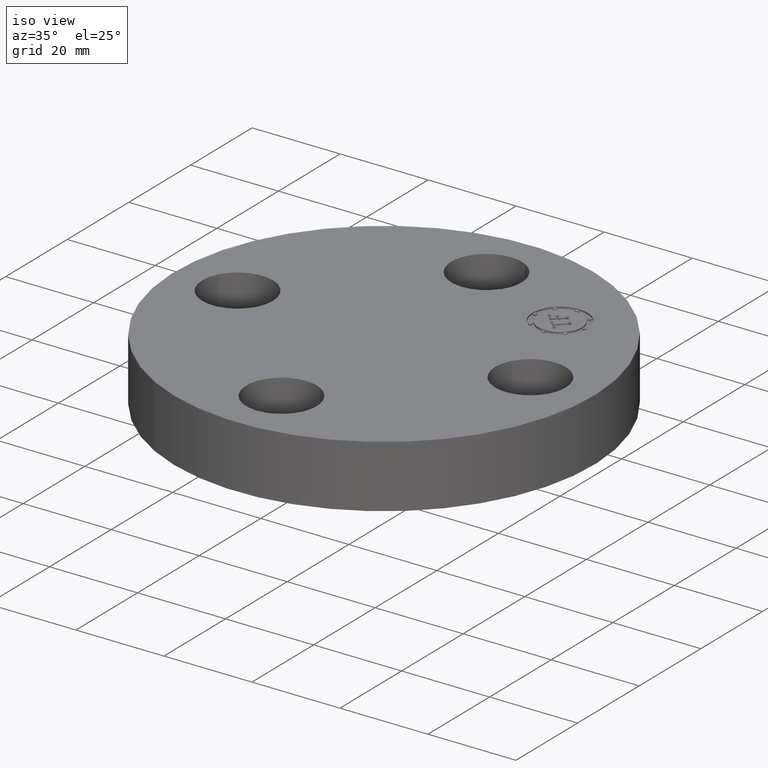
[diagram: clean part render]
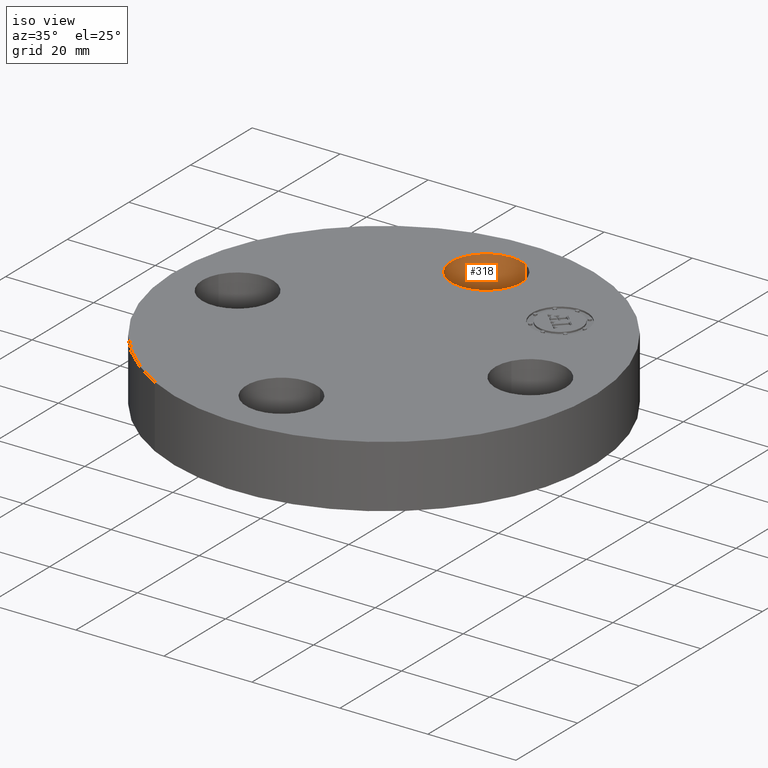
[diagram: same view with one face highlighted and labeled with its STEP entity id]
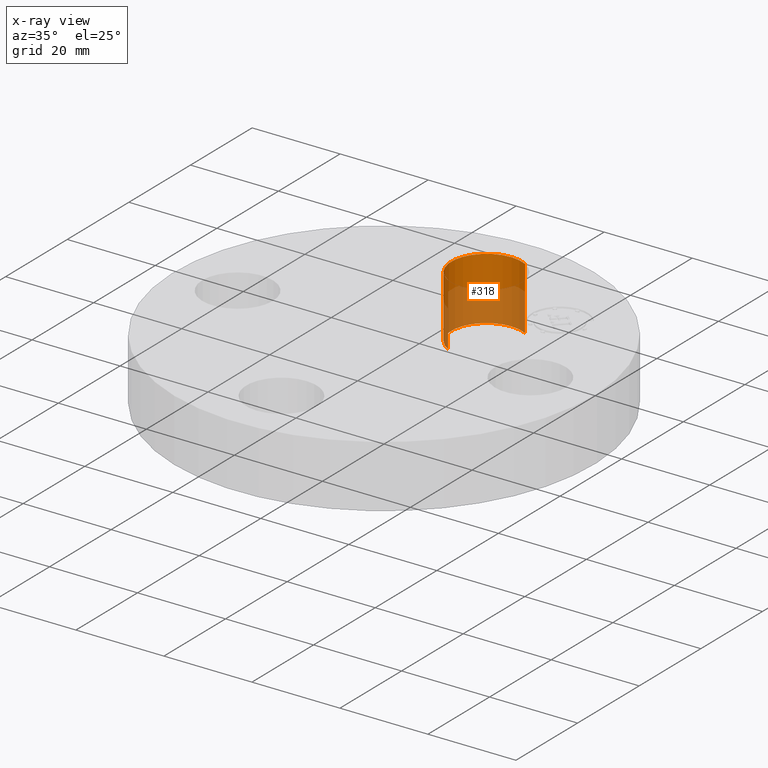
[diagram: x-ray of the same camera — body ghosted, the highlighted face saturated]
A machine part, iso view. The second image highlights one B-rep face of the part: STEP entity #318.
The next image is the same camera in x-ray: the body ghosted, the highlighted face saturated — about 54% of this face is hidden behind the body in this view.
In plain terms, the highlighted cylindrical surface (partial cylindrical patch) has radius 8.001 mm, axis along (0, 0, -1).
Its self-contained STEP definition (entity closure, byte-faithful):
#271=AXIS2_PLACEMENT_3D('Circle Axis2P3D',#269,#270,$) ;
#291=AXIS2_PLACEMENT_3D('Cylinder Axis2P3D',#288,#289,#290) ;
#309=AXIS2_PLACEMENT_3D('Circle Axis2P3D',#307,#308,$) ;
#269=CARTESIAN_POINT('Axis2P3D Location',(-3.1470888887E-016,1.31000000001,0.)) ;
#273=CARTESIAN_POINT('Vertex',(-0.151019044661,1.03356149301,0.)) ;
#275=CARTESIAN_POINT('Vertex',(0.151019044661,1.586438507,0.)) ;
#288=CARTESIAN_POINT('Axis2P3D Location',(-2.40643096033E-016,1.31000000001,0.556062992128)) ;
#293=CARTESIAN_POINT('Line Origine',(-0.151019044661,1.03356149301,0.280000000001)) ;
#297=CARTESIAN_POINT('Vertex',(-0.151019044661,1.03356149301,0.560000000002)) ;
#300=CARTESIAN_POINT('Line Origine',(0.151019044661,1.586438507,0.280000000001)) ;
#304=CARTESIAN_POINT('Vertex',(0.151019044661,1.586438507,0.560000000002)) ;
#307=CARTESIAN_POINT('Axis2P3D Location',(-2.40643096033E-016,1.31000000001,0.560000000002)) ;
#270=DIRECTION('Axis2P3D Direction',(0.,0.,-0.0393700787402)) ;
#289=DIRECTION('Axis2P3D Direction',(0.,0.,-0.0393700787402)) ;
#290=DIRECTION('Axis2P3D XDirection',(0.0188750212049,0.0345504945626,0.)) ;
#294=DIRECTION('Vector Direction',(0.,0.,-0.0393700787402)) ;
#301=DIRECTION('Vector Direction',(0.,0.,-0.0393700787402)) ;
#308=DIRECTION('Axis2P3D Direction',(0.,0.,-0.0393700787402)) ;
#295=VECTOR('Line Direction',#294,0.0393700787402) ;
#302=VECTOR('Line Direction',#301,0.0393700787402) ;
#313=ORIENTED_EDGE('',*,*,#299,.F.) ;
#314=ORIENTED_EDGE('',*,*,#277,.T.) ;
#315=ORIENTED_EDGE('',*,*,#306,.T.) ;
#316=ORIENTED_EDGE('',*,*,#311,.F.) ;
#318=ADVANCED_FACE('PartBody',(#317),#292,.F.) ;
#272=CIRCLE('generated circle',#271,0.315000000001) ;
#310=CIRCLE('generated circle',#309,0.315000000001) ;
#292=CYLINDRICAL_SURFACE('generated cylinder',#291,0.315000000001) ;
#277=EDGE_CURVE('',#274,#276,#272,.T.) ;
#299=EDGE_CURVE('',#274,#298,#296,.F.) ;
#306=EDGE_CURVE('',#276,#305,#303,.F.) ;
#311=EDGE_CURVE('',#298,#305,#310,.T.) ;
#312=EDGE_LOOP('',(#313,#314,#315,#316)) ;
#317=FACE_OUTER_BOUND('',#312,.T.) ;
#296=LINE('Line',#293,#295) ;
#303=LINE('Line',#300,#302) ;
#274=VERTEX_POINT('',#273) ;
#276=VERTEX_POINT('',#275) ;
#298=VERTEX_POINT('',#297) ;
#305=VERTEX_POINT('',#304) ;